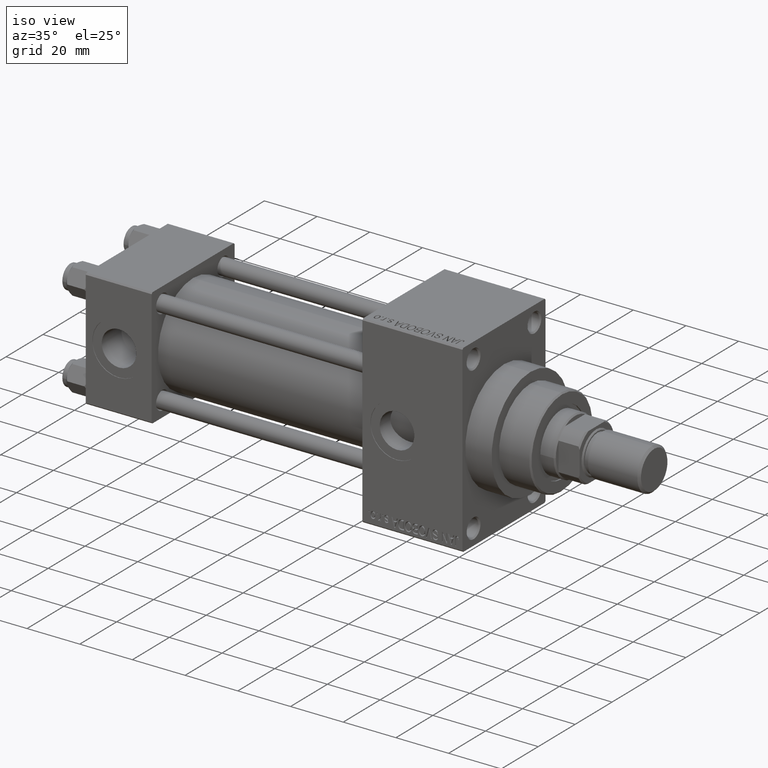
[diagram: clean part render]
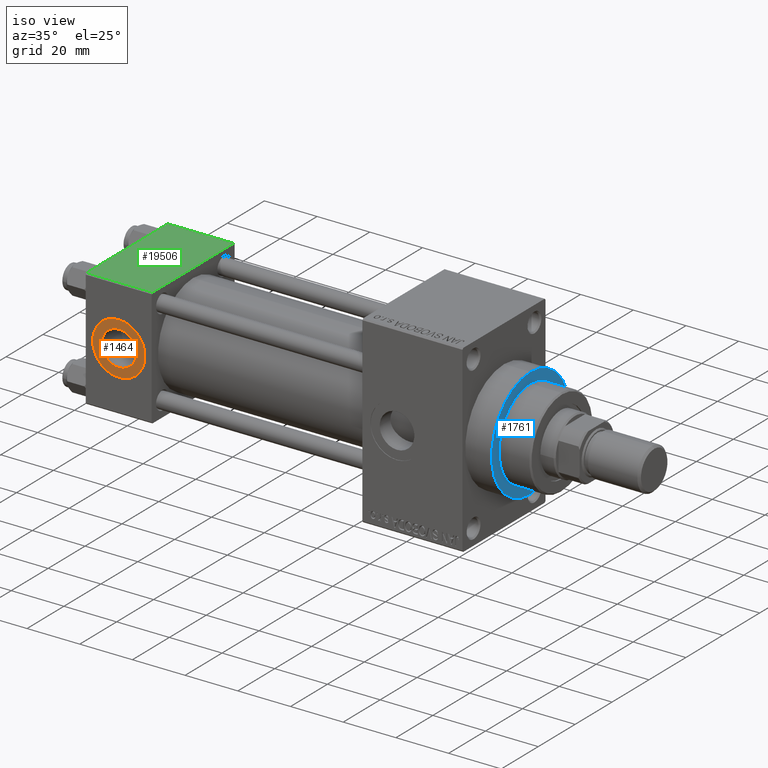
[diagram: same view with three faces highlighted in distinct colors, each labeled with its STEP entity id]
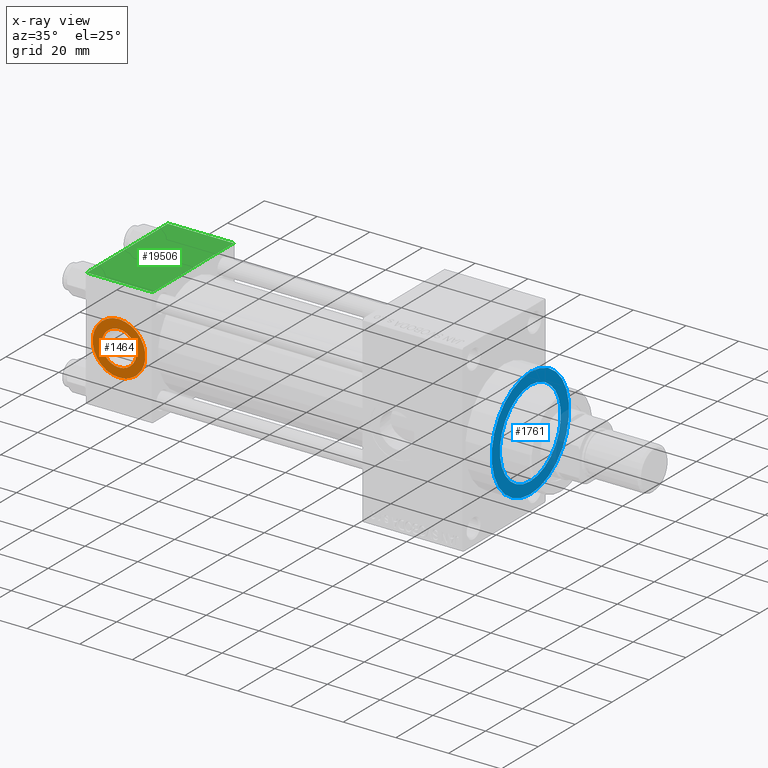
[diagram: x-ray of the same camera — body ghosted, the three highlighted faces saturated]
A machine part, iso view with three faces highlighted in distinct colors.
The next image is the same camera in x-ray (body ghosted, the three faces saturated) — at least one of them is partly hidden behind the body in this view.
Their STEP definitions:

[orange] entity #1464 — the highlighted planar face has unit normal (0, -1, -0).
#669 = CARTESIAN_POINT ( 'NONE',  ( 12.50000000000000000, -22.30000000000000071, 6.579999999999998295 ) ) ;
#1464 = ADVANCED_FACE ( 'NONE', ( #4269, #8284 ), #42856, .T. ) ;
#1982 = CARTESIAN_POINT ( 'NONE',  ( 12.50000000000000000, -22.30000000000000071, -9.999999999999996447 ) ) ;
#3580 = EDGE_CURVE ( 'NONE', #15707, #24495, #45491, .T. ) ;
#4269 = FACE_BOUND ( 'NONE', #36935, .T. ) ;
#6641 = AXIS2_PLACEMENT_3D ( 'NONE', #28226, #9187, #40250 ) ;
#7211 = CARTESIAN_POINT ( 'NONE',  ( 12.50000000000000000, -22.30000000000000071, 1.734723475976807403E-17 ) ) ;
#8284 = FACE_OUTER_BOUND ( 'NONE', #29682, .T. ) ;
#8519 = DIRECTION ( 'NONE',  ( 0.000000000000000000, -1.000000000000000000, -8.673617379884036705E-17 ) ) ;
#9187 = DIRECTION ( 'NONE',  ( 0.000000000000000000, -1.000000000000000000, -8.673617379884036705E-17 ) ) ;
#9260 = DIRECTION ( 'NONE',  ( 0.000000000000000000, 0.000000000000000000, -1.000000000000000000 ) ) ;
#11232 = DIRECTION ( 'NONE',  ( 0.000000000000000000, 0.000000000000000000, -1.000000000000000000 ) ) ;
#12663 = CIRCLE ( 'NONE', #19082, 9.999999999999996447 ) ;
#13781 = EDGE_CURVE ( 'NONE', #24495, #15707, #29041, .T. ) ;
#15707 = VERTEX_POINT ( 'NONE', #26465 ) ;
#17092 = EDGE_CURVE ( 'NONE', #35561, #44527, #25027, .T. ) ;
#19082 = AXIS2_PLACEMENT_3D ( 'NONE', #7211, #45307, #11232 ) ;
#22700 = ORIENTED_EDGE ( 'NONE', *, *, #17092, .T. ) ;
#24301 = DIRECTION ( 'NONE',  ( 0.000000000000000000, -1.000000000000000000, -8.673617379884036705E-17 ) ) ;
#24495 = VERTEX_POINT ( 'NONE', #669 ) ;
#24546 = ORIENTED_EDGE ( 'NONE', *, *, #28665, .T. ) ;
#25027 = CIRCLE ( 'NONE', #37036, 9.999999999999996447 ) ;
#26465 = CARTESIAN_POINT ( 'NONE',  ( 12.50000000000000000, -22.30000000000000071, -6.579999999999998295 ) ) ;
#27569 = DIRECTION ( 'NONE',  ( 0.000000000000000000, -1.000000000000000000, -8.673617379884036705E-17 ) ) ;
#28226 = CARTESIAN_POINT ( 'NONE',  ( 12.50000000000000000, -22.30000000000000071, 1.734723475976808635E-17 ) ) ;
#28665 = EDGE_CURVE ( 'NONE', #44527, #35561, #12663, .T. ) ;
#28795 = AXIS2_PLACEMENT_3D ( 'NONE', #43584, #27569, #9260 ) ;
#29041 = CIRCLE ( 'NONE', #6641, 6.579999999999998295 ) ;
#29548 = AXIS2_PLACEMENT_3D ( 'NONE', #38593, #8519, #35571 ) ;
#29682 = EDGE_LOOP ( 'NONE', ( #24546, #22700 ) ) ;
#31318 = CARTESIAN_POINT ( 'NONE',  ( 12.50000000000000000, -22.30000000000000071, 1.734723475976807403E-17 ) ) ;
#32372 = CARTESIAN_POINT ( 'NONE',  ( 12.50000000000000178, -22.30000000000000071, 9.999999999999996447 ) ) ;
#35561 = VERTEX_POINT ( 'NONE', #32372 ) ;
#35571 = DIRECTION ( 'NONE',  ( 0.000000000000000000, 8.673617379884036705E-17, -1.000000000000000000 ) ) ;
#35801 = DIRECTION ( 'NONE',  ( 0.000000000000000000, 0.000000000000000000, -1.000000000000000000 ) ) ;
#36935 = EDGE_LOOP ( 'NONE', ( #40740, #42309 ) ) ;
#37036 = AXIS2_PLACEMENT_3D ( 'NONE', #31318, #24301, #35801 ) ;
#38593 = CARTESIAN_POINT ( 'NONE',  ( 12.50000000000000000, -22.30000000000000071, 1.734723475976807403E-17 ) ) ;
#40250 = DIRECTION ( 'NONE',  ( 0.000000000000000000, 0.000000000000000000, -1.000000000000000000 ) ) ;
#40740 = ORIENTED_EDGE ( 'NONE', *, *, #3580, .F. ) ;
#42309 = ORIENTED_EDGE ( 'NONE', *, *, #13781, .F. ) ;
#42856 = PLANE ( 'NONE',  #29548 ) ;
#43584 = CARTESIAN_POINT ( 'NONE',  ( 12.50000000000000000, -22.30000000000000071, 1.734723475976808635E-17 ) ) ;
#44527 = VERTEX_POINT ( 'NONE', #1982 ) ;
#45307 = DIRECTION ( 'NONE',  ( 0.000000000000000000, -1.000000000000000000, -8.673617379884036705E-17 ) ) ;
#45491 = CIRCLE ( 'NONE', #28795, 6.579999999999998295 ) ;

[blue] entity #1761 — the highlighted planar face has unit normal (1, 0, 0).
#306 = AXIS2_PLACEMENT_3D ( 'NONE', #45384, #3036, #11063 ) ;
#464 = CARTESIAN_POINT ( 'NONE',  ( 153.0000000000000284, 0.000000000000000000, 0.000000000000000000 ) ) ;
#701 = DIRECTION ( 'NONE',  ( 1.000000000000000000, 0.000000000000000000, 0.000000000000000000 ) ) ;
#1725 = EDGE_CURVE ( 'NONE', #44815, #29241, #15145, .T. ) ;
#1761 = ADVANCED_FACE ( 'NONE', ( #19998, #27517 ), #8466, .T. ) ;
#3036 = DIRECTION ( 'NONE',  ( 1.000000000000000000, 0.000000000000000000, 0.000000000000000000 ) ) ;
#3929 = AXIS2_PLACEMENT_3D ( 'NONE', #464, #27277, #42067 ) ;
#8225 = CARTESIAN_POINT ( 'NONE',  ( 153.0000000000000284, 0.000000000000000000, 0.000000000000000000 ) ) ;
#8466 = PLANE ( 'NONE',  #43112 ) ;
#10219 = DIRECTION ( 'NONE',  ( 1.000000000000000000, 0.000000000000000000, 0.000000000000000000 ) ) ;
#11063 = DIRECTION ( 'NONE',  ( 0.000000000000000000, 0.000000000000000000, -1.000000000000000000 ) ) ;
#12470 = ORIENTED_EDGE ( 'NONE', *, *, #19579, .F. ) ;
#13894 = AXIS2_PLACEMENT_3D ( 'NONE', #44547, #10219, #40795 ) ;
#15117 = AXIS2_PLACEMENT_3D ( 'NONE', #16654, #24183, #28674 ) ;
#15145 = CIRCLE ( 'NONE', #3929, 21.00000000000000000 ) ;
#16654 = CARTESIAN_POINT ( 'NONE',  ( 153.0000000000000284, 0.000000000000000000, 0.000000000000000000 ) ) ;
#18820 = CARTESIAN_POINT ( 'NONE',  ( 153.0000000000000284, 0.000000000000000000, -16.50000000000000000 ) ) ;
#19501 = EDGE_LOOP ( 'NONE', ( #12470, #39892 ) ) ;
#19579 = EDGE_CURVE ( 'NONE', #40640, #32444, #21919, .T. ) ;
#19998 = FACE_BOUND ( 'NONE', #19501, .T. ) ;
#21919 = CIRCLE ( 'NONE', #306, 16.50000000000000000 ) ;
#23288 = CARTESIAN_POINT ( 'NONE',  ( 153.0000000000000284, 2.571758278209441661E-15, -21.00000000000000000 ) ) ;
#24183 = DIRECTION ( 'NONE',  ( 1.000000000000000000, 0.000000000000000000, 0.000000000000000000 ) ) ;
#24236 = CARTESIAN_POINT ( 'NONE',  ( 153.0000000000000284, 0.000000000000000000, 21.00000000000000000 ) ) ;
#27277 = DIRECTION ( 'NONE',  ( 1.000000000000000000, 0.000000000000000000, 0.000000000000000000 ) ) ;
#27517 = FACE_OUTER_BOUND ( 'NONE', #49524, .T. ) ;
#28626 = ORIENTED_EDGE ( 'NONE', *, *, #1725, .T. ) ;
#28674 = DIRECTION ( 'NONE',  ( 0.000000000000000000, 0.000000000000000000, -1.000000000000000000 ) ) ;
#29241 = VERTEX_POINT ( 'NONE', #23288 ) ;
#31522 = DIRECTION ( 'NONE',  ( 0.000000000000000000, 0.000000000000000000, -1.000000000000000000 ) ) ;
#32444 = VERTEX_POINT ( 'NONE', #41063 ) ;
#33817 = EDGE_CURVE ( 'NONE', #29241, #44815, #38302, .T. ) ;
#38302 = CIRCLE ( 'NONE', #15117, 21.00000000000000000 ) ;
#39168 = ORIENTED_EDGE ( 'NONE', *, *, #33817, .T. ) ;
#39892 = ORIENTED_EDGE ( 'NONE', *, *, #46257, .F. ) ;
#40640 = VERTEX_POINT ( 'NONE', #18820 ) ;
#40795 = DIRECTION ( 'NONE',  ( 0.000000000000000000, 0.000000000000000000, -1.000000000000000000 ) ) ;
#41063 = CARTESIAN_POINT ( 'NONE',  ( 153.0000000000000284, 2.020667218593133100E-15, 16.50000000000000000 ) ) ;
#41891 = CIRCLE ( 'NONE', #13894, 16.50000000000000000 ) ;
#42067 = DIRECTION ( 'NONE',  ( 0.000000000000000000, 0.000000000000000000, -1.000000000000000000 ) ) ;
#43112 = AXIS2_PLACEMENT_3D ( 'NONE', #8225, #701, #31522 ) ;
#44547 = CARTESIAN_POINT ( 'NONE',  ( 153.0000000000000284, 0.000000000000000000, 0.000000000000000000 ) ) ;
#44815 = VERTEX_POINT ( 'NONE', #24236 ) ;
#45384 = CARTESIAN_POINT ( 'NONE',  ( 153.0000000000000284, 0.000000000000000000, 0.000000000000000000 ) ) ;
#46257 = EDGE_CURVE ( 'NONE', #32444, #40640, #41891, .T. ) ;
#49524 = EDGE_LOOP ( 'NONE', ( #28626, #39168 ) ) ;

[green] entity #19506 — the highlighted planar face has unit normal (0, 0, -1).
#540 = CARTESIAN_POINT ( 'NONE',  ( 25.00000000000000000, 21.99999999999999289, 22.50000000000000355 ) ) ;
#651 = VECTOR ( 'NONE', #2336, 1000.000000000000000 ) ;
#2336 = DIRECTION ( 'NONE',  ( 0.000000000000000000, -1.000000000000000000, -7.709882115452476934E-17 ) ) ;
#3382 = ORIENTED_EDGE ( 'NONE', *, *, #22355, .T. ) ;
#3594 = VECTOR ( 'NONE', #7648, 1000.000000000000000 ) ;
#4458 = VERTEX_POINT ( 'NONE', #24882 ) ;
#6111 = ORIENTED_EDGE ( 'NONE', *, *, #23065, .T. ) ;
#7648 = DIRECTION ( 'NONE',  ( 1.000000000000000000, 0.000000000000000000, 0.000000000000000000 ) ) ;
#10360 = LINE ( 'NONE', #47696, #651 ) ;
#10724 = VERTEX_POINT ( 'NONE', #19736 ) ;
#13835 = DIRECTION ( 'NONE',  ( 0.000000000000000000, 1.000000000000000000, 7.709882115452476934E-17 ) ) ;
#15299 = LINE ( 'NONE', #30562, #38812 ) ;
#19506 = ADVANCED_FACE ( 'NONE', ( #48147 ), #40138, .F. ) ;
#19736 = CARTESIAN_POINT ( 'NONE',  ( 0.000000000000000000, -21.99999999999997868, 22.50000000000000000 ) ) ;
#19751 = LINE ( 'NONE', #20000, #24841 ) ;
#20000 = CARTESIAN_POINT ( 'NONE',  ( 0.000000000000000000, 22.50000000000000000, 22.50000000000000355 ) ) ;
#21346 = CARTESIAN_POINT ( 'NONE',  ( 25.00000000000000000, 22.50000000000000000, 22.50000000000000355 ) ) ;
#22355 = EDGE_CURVE ( 'NONE', #24435, #4458, #15299, .T. ) ;
#23065 = EDGE_CURVE ( 'NONE', #10724, #46070, #45734, .T. ) ;
#23514 = ORIENTED_EDGE ( 'NONE', *, *, #36285, .T. ) ;
#24435 = VERTEX_POINT ( 'NONE', #540 ) ;
#24841 = VECTOR ( 'NONE', #35016, 1000.000000000000000 ) ;
#24882 = CARTESIAN_POINT ( 'NONE',  ( 0.000000000000000000, 21.99999999999999289, 22.50000000000000355 ) ) ;
#25271 = CARTESIAN_POINT ( 'NONE',  ( 25.00000000000000000, -21.99999999999997868, 22.50000000000000000 ) ) ;
#25933 = AXIS2_PLACEMENT_3D ( 'NONE', #21346, #36615, #13835 ) ;
#28438 = EDGE_LOOP ( 'NONE', ( #23514, #6111, #45974, #3382 ) ) ;
#30562 = CARTESIAN_POINT ( 'NONE',  ( 0.000000000000000000, 21.99999999999999289, 22.50000000000000355 ) ) ;
#30970 = EDGE_CURVE ( 'NONE', #24435, #46070, #10360, .T. ) ;
#31185 = CARTESIAN_POINT ( 'NONE',  ( 25.00000000000000000, -21.99999999999999289, 22.50000000000000000 ) ) ;
#35016 = DIRECTION ( 'NONE',  ( 0.000000000000000000, -1.000000000000000000, -7.709882115452476934E-17 ) ) ;
#36285 = EDGE_CURVE ( 'NONE', #4458, #10724, #19751, .T. ) ;
#36615 = DIRECTION ( 'NONE',  ( 0.000000000000000000, 7.709882115452476934E-17, -1.000000000000000000 ) ) ;
#38812 = VECTOR ( 'NONE', #45851, 1000.000000000000000 ) ;
#40138 = PLANE ( 'NONE',  #25933 ) ;
#45734 = LINE ( 'NONE', #31185, #3594 ) ;
#45851 = DIRECTION ( 'NONE',  ( -1.000000000000000000, 0.000000000000000000, 0.000000000000000000 ) ) ;
#45974 = ORIENTED_EDGE ( 'NONE', *, *, #30970, .F. ) ;
#46070 = VERTEX_POINT ( 'NONE', #25271 ) ;
#47696 = CARTESIAN_POINT ( 'NONE',  ( 25.00000000000000000, 22.50000000000000000, 22.50000000000000355 ) ) ;
#48147 = FACE_OUTER_BOUND ( 'NONE', #28438, .T. ) ;